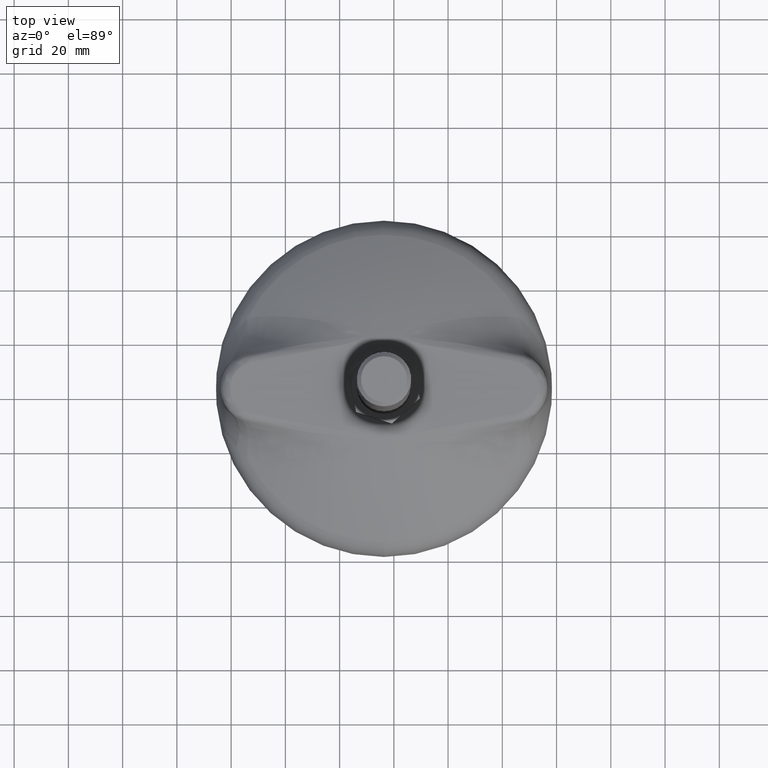
[diagram: clean part render]
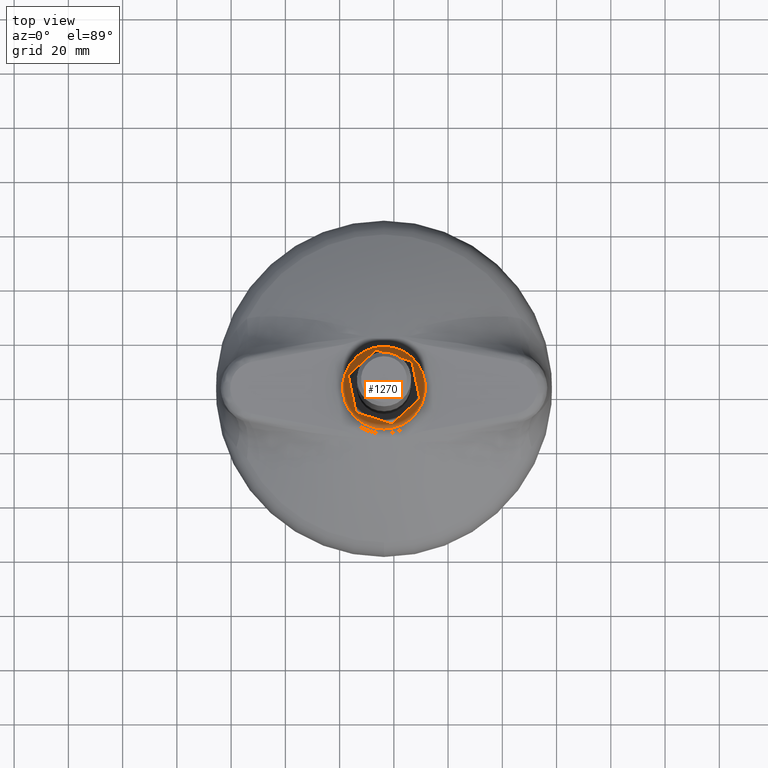
[diagram: same view with one face highlighted and labeled with its STEP entity id]
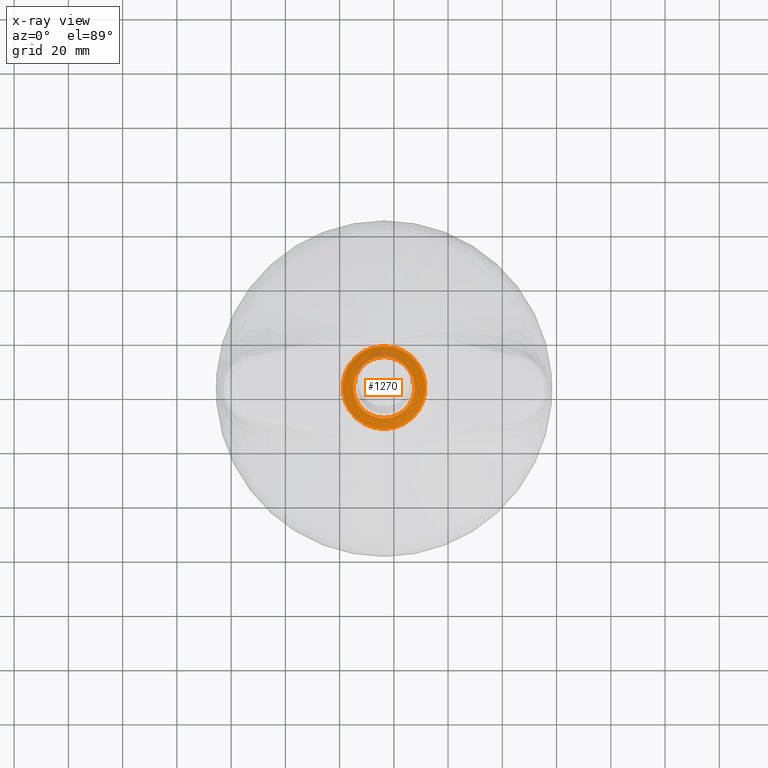
[diagram: x-ray of the same camera — body ghosted, the highlighted face saturated]
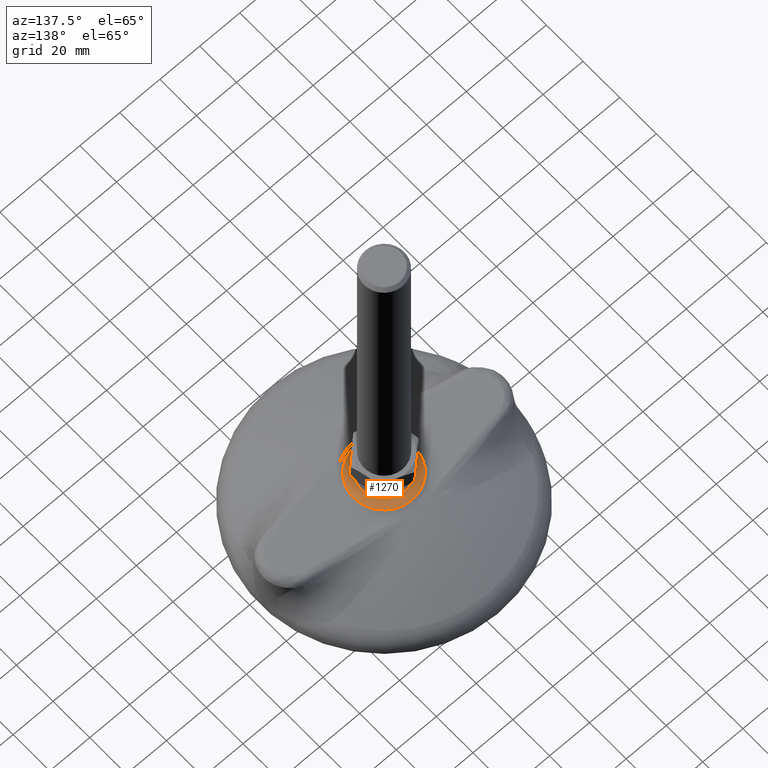
[diagram: same view with one face highlighted and labeled with its STEP entity id]
A machine part, top view. The second image highlights one B-rep face of the part: STEP entity #1270.
The next image is the same camera in x-ray: the body ghosted, the highlighted face saturated — about 9% of this face is hidden behind the body in this view.
A second angle (auxiliary view) of the same face is appended — the face is thin or edge-on in the first view.
In plain terms, the highlighted toroidal blend (fillet) surface has major radius 11.25 mm and minor (blend) radius 7.9988 mm.
Its self-contained STEP definition (entity closure, byte-faithful):
#92=TOROIDAL_SURFACE('',#1471,11.2500000000002,7.99882229018571);
#251=FACE_OUTER_BOUND('',#334,.T.);
#334=EDGE_LOOP('',(#986,#987,#988,#989));
#479=CIRCLE('',#1470,15.2408324842273);
#480=CIRCLE('',#1472,7.99882229018571);
#481=CIRCLE('',#1473,11.2500000000001);
#593=VERTEX_POINT('',#2788);
#594=VERTEX_POINT('',#2792);
#739=EDGE_CURVE('',#593,#593,#479,.T.);
#740=EDGE_CURVE('',#593,#594,#480,.T.);
#741=EDGE_CURVE('',#594,#594,#481,.T.);
#986=ORIENTED_EDGE('',*,*,#739,.F.);
#987=ORIENTED_EDGE('',*,*,#740,.T.);
#988=ORIENTED_EDGE('',*,*,#741,.T.);
#989=ORIENTED_EDGE('',*,*,#740,.F.);
#1270=ADVANCED_FACE('',(#251),#92,.T.);
#1470=AXIS2_PLACEMENT_3D('',#2790,#1717,#1718);
#1471=AXIS2_PLACEMENT_3D('',#2791,#1719,#1720);
#1472=AXIS2_PLACEMENT_3D('',#2793,#1721,#1722);
#1473=AXIS2_PLACEMENT_3D('',#2794,#1723,#1724);
#1717=DIRECTION('center_axis',(0.,-1.171453E-15,-1.));
#1718=DIRECTION('ref_axis',(0.,1.,-1.171453E-15));
#1719=DIRECTION('center_axis',(0.,-1.171453E-15,-1.));
#1720=DIRECTION('ref_axis',(0.,1.,-1.29197492587809E-15));
#1721=DIRECTION('center_axis',(-1.,1.22464679914735E-16,-1.43461616680156E-31));
#1722=DIRECTION('ref_axis',(-1.22464679914735E-16,-1.,1.15354904096258E-15));
#1723=DIRECTION('center_axis',(0.,-1.171453E-15,-1.));
#1724=DIRECTION('ref_axis',(0.,1.,-1.171453E-15));
#2788=CARTESIAN_POINT('',(1.866463671815E-15,-15.2408324842273,25.2653143056169));
#2790=CARTESIAN_POINT('Origin',(0.,1.567353E-14,25.2653143056168));
#2791=CARTESIAN_POINT('Origin',(0.,-2.204427E-14,18.3331851873149));
#2792=CARTESIAN_POINT('',(1.37772764904078E-15,-11.2500000000001,26.3320074741268));
#2793=CARTESIAN_POINT('Origin',(-1.3777276490408E-15,-11.2500000000002,
18.3331851873149));
#2794=CARTESIAN_POINT('Origin',(0.,1.817269E-14,26.3320074741268));